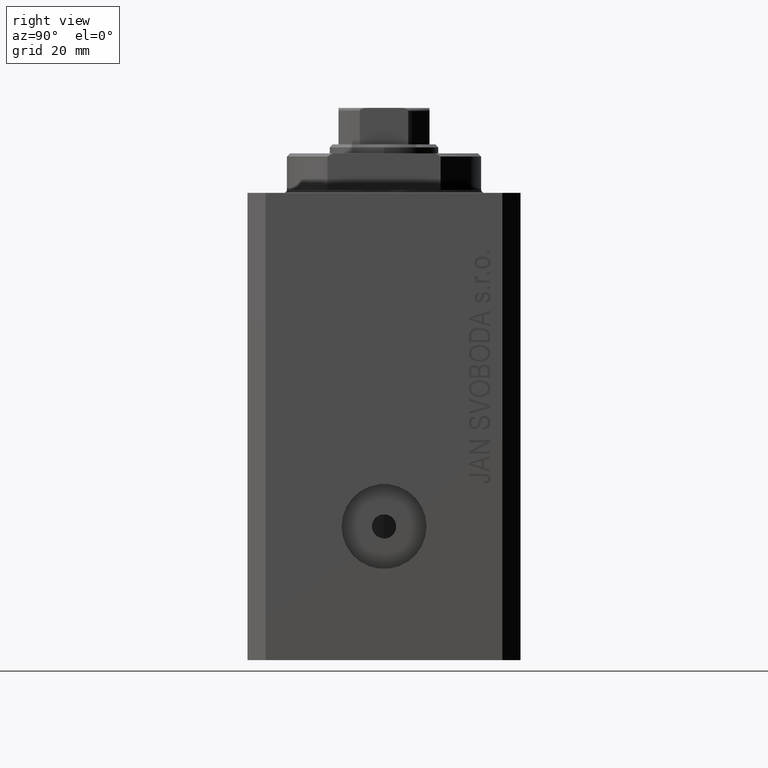
[diagram: clean part render]
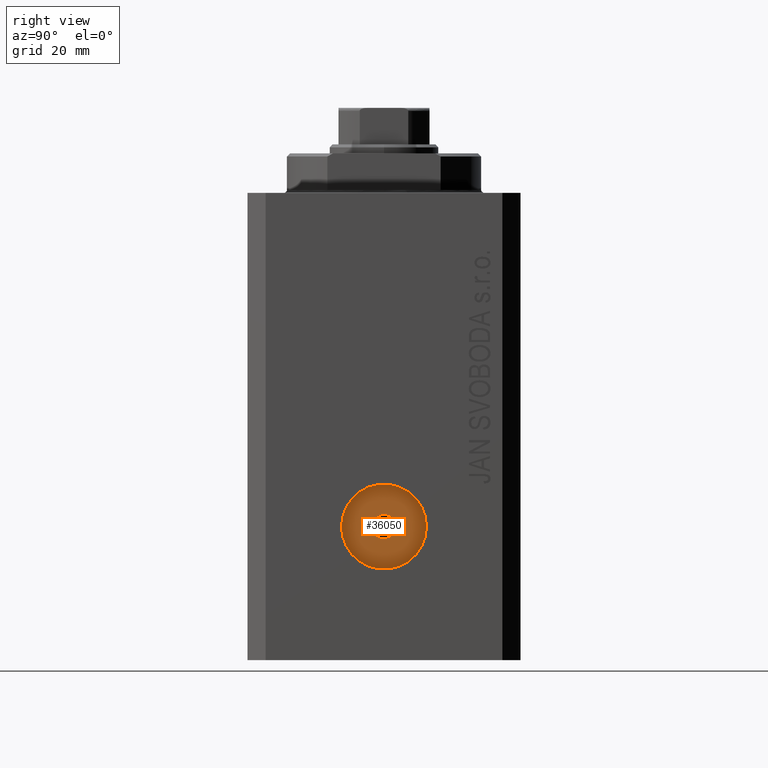
[diagram: same view with one face highlighted and labeled with its STEP entity id]
A machine part, right view. The second image highlights one B-rep face of the part: STEP entity #36050.
In plain terms, the highlighted planar face has unit normal (1, -0, 0).
Its self-contained STEP definition (entity closure, byte-faithful):
#1706 = CARTESIAN_POINT ( 'NONE',  ( 27.99999999999677414, 4.270088556253899177E-14, -55.00000000000000000 ) ) ;
#2042 = EDGE_LOOP ( 'NONE', ( #26072, #38769 ) ) ;
#4948 = AXIS2_PLACEMENT_3D ( 'NONE', #34039, #41009, #38290 ) ;
#5481 = DIRECTION ( 'NONE',  ( 1.000000000000000000, -1.334402673828349134E-14, 0.000000000000000000 ) ) ;
#5526 = DIRECTION ( 'NONE',  ( 1.000000000000000000, -1.334402673828349134E-14, 0.000000000000000000 ) ) ;
#6377 = DIRECTION ( 'NONE',  ( 1.334402673828349134E-14, 1.000000000000000000, 0.000000000000000000 ) ) ;
#8123 = EDGE_LOOP ( 'NONE', ( #38565, #26418 ) ) ;
#8467 = VERTEX_POINT ( 'NONE', #20646 ) ;
#9410 = CARTESIAN_POINT ( 'NONE',  ( 27.99999999999677414, 4.270088556253899177E-14, -55.00000000000000000 ) ) ;
#9604 = EDGE_CURVE ( 'NONE', #11658, #23500, #31029, .T. ) ;
#11100 = CIRCLE ( 'NONE', #19838, 7.000000000000000000 ) ;
#11658 = VERTEX_POINT ( 'NONE', #35004 ) ;
#11957 = AXIS2_PLACEMENT_3D ( 'NONE', #30531, #44223, #23556 ) ;
#16675 = CARTESIAN_POINT ( 'NONE',  ( 27.99999999999680256, 2.000000000000045741, -55.00000000000000000 ) ) ;
#19838 = AXIS2_PLACEMENT_3D ( 'NONE', #1706, #5526, #35661 ) ;
#19875 = PLANE ( 'NONE',  #22901 ) ;
#20646 = CARTESIAN_POINT ( 'NONE',  ( 27.99999999999674571, -1.999999999999960476, -55.00000000000000000 ) ) ;
#22024 = CIRCLE ( 'NONE', #11957, 2.000000000000003109 ) ;
#22901 = AXIS2_PLACEMENT_3D ( 'NONE', #30231, #5481, #6377 ) ;
#22923 = DIRECTION ( 'NONE',  ( 1.000000000000000000, -1.334402673828349134E-14, 0.000000000000000000 ) ) ;
#23500 = VERTEX_POINT ( 'NONE', #40022 ) ;
#23556 = DIRECTION ( 'NONE',  ( 1.387778780781443467E-14, 1.000000000000000000, 0.000000000000000000 ) ) ;
#24365 = CIRCLE ( 'NONE', #4948, 2.000000000000003109 ) ;
#24763 = EDGE_CURVE ( 'NONE', #23500, #11658, #11100, .T. ) ;
#26072 = ORIENTED_EDGE ( 'NONE', *, *, #41990, .F. ) ;
#26300 = DIRECTION ( 'NONE',  ( 1.338215252896394112E-14, 1.000000000000000000, 0.000000000000000000 ) ) ;
#26418 = ORIENTED_EDGE ( 'NONE', *, *, #9604, .T. ) ;
#27429 = AXIS2_PLACEMENT_3D ( 'NONE', #9410, #22923, #26300 ) ;
#30231 = CARTESIAN_POINT ( 'NONE',  ( 27.99999999999677414, 4.270088556253899177E-14, -55.00000000000000000 ) ) ;
#30531 = CARTESIAN_POINT ( 'NONE',  ( 27.99999999999677414, 4.270088556253900439E-14, -55.00000000000000000 ) ) ;
#30715 = EDGE_CURVE ( 'NONE', #8467, #33817, #22024, .T. ) ;
#31029 = CIRCLE ( 'NONE', #27429, 7.000000000000000000 ) ;
#33817 = VERTEX_POINT ( 'NONE', #16675 ) ;
#34039 = CARTESIAN_POINT ( 'NONE',  ( 27.99999999999677414, 4.270088556253900439E-14, -55.00000000000000000 ) ) ;
#35004 = CARTESIAN_POINT ( 'NONE',  ( 27.99999999999668177, -6.999999999999957367, -55.00000000000000000 ) ) ;
#35661 = DIRECTION ( 'NONE',  ( 1.338215252896394112E-14, 1.000000000000000000, 0.000000000000000000 ) ) ;
#36050 = ADVANCED_FACE ( 'NONE', ( #36499, #36728 ), #19875, .T. ) ;
#36499 = FACE_BOUND ( 'NONE', #2042, .T. ) ;
#36728 = FACE_OUTER_BOUND ( 'NONE', #8123, .T. ) ;
#38290 = DIRECTION ( 'NONE',  ( 1.387778780781443467E-14, 1.000000000000000000, 0.000000000000000000 ) ) ;
#38565 = ORIENTED_EDGE ( 'NONE', *, *, #24763, .T. ) ;
#38769 = ORIENTED_EDGE ( 'NONE', *, *, #30715, .F. ) ;
#40022 = CARTESIAN_POINT ( 'NONE',  ( 27.99999999999686651, 7.000000000000042633, -55.00000000000000000 ) ) ;
#41009 = DIRECTION ( 'NONE',  ( 1.000000000000000000, -1.334402673828349134E-14, 0.000000000000000000 ) ) ;
#41990 = EDGE_CURVE ( 'NONE', #33817, #8467, #24365, .T. ) ;
#44223 = DIRECTION ( 'NONE',  ( 1.000000000000000000, -1.334402673828349134E-14, 0.000000000000000000 ) ) ;